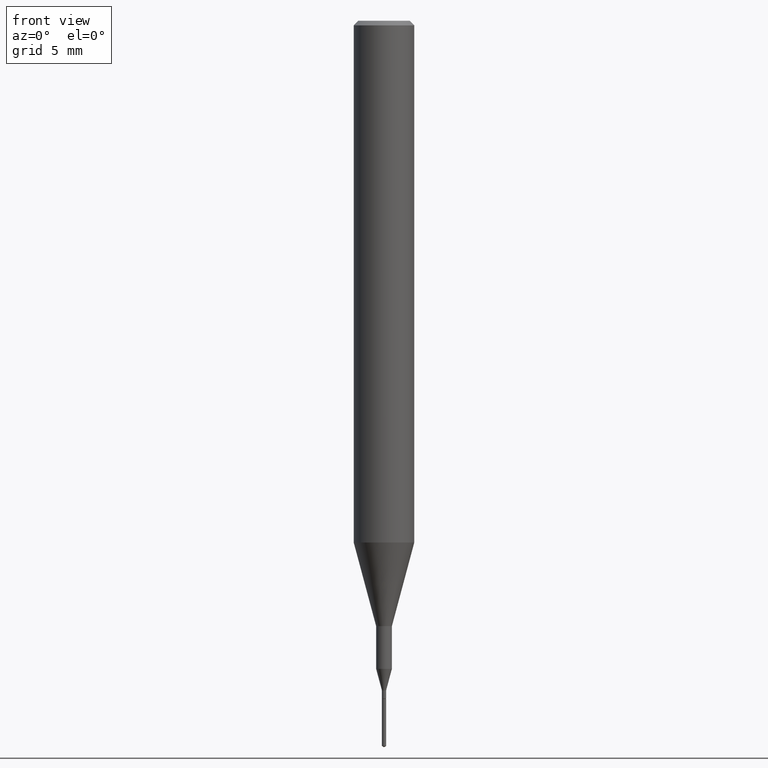
[diagram: clean part render]
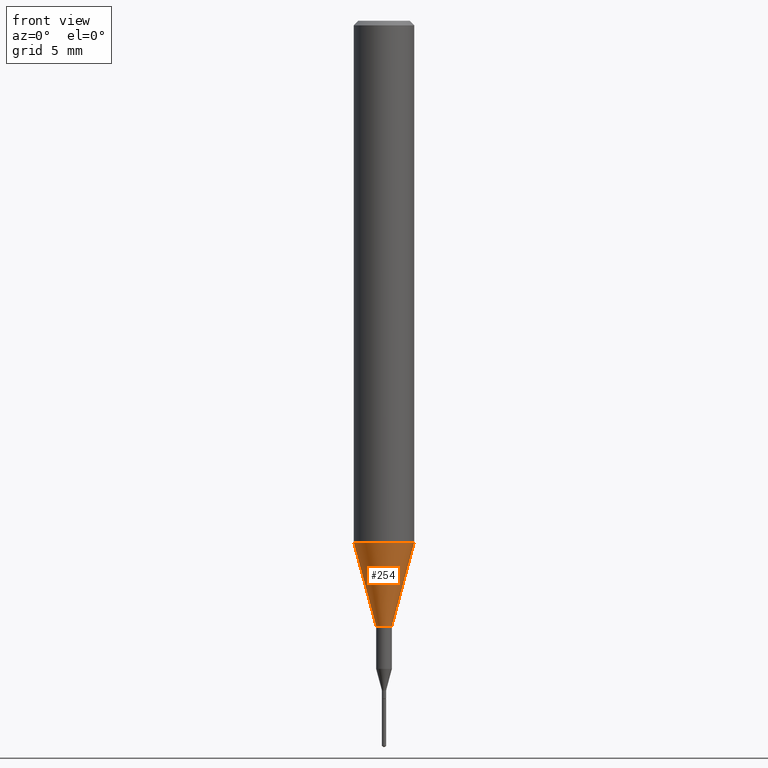
[diagram: same view with one face highlighted and labeled with its STEP entity id]
A machine part, front view. The second image highlights one B-rep face of the part: STEP entity #254.
In plain terms, the highlighted conical surface has half-angle 15 deg.
Its self-contained STEP definition (entity closure, byte-faithful):
#14 = VERTEX_POINT ( 'NONE', #343 ) ;
#21 = CIRCLE ( 'NONE', #82, 0.01624999999999999709 ) ;
#63 = AXIS2_PLACEMENT_3D ( 'NONE', #149, #416, #190 ) ;
#82 = AXIS2_PLACEMENT_3D ( 'NONE', #223, #372, #424 ) ;
#105 = VECTOR ( 'NONE', #351, 39.37007874015747433 ) ;
#107 = FACE_OUTER_BOUND ( 'NONE', #410, .T. ) ;
#137 = LINE ( 'NONE', #454, #222 ) ;
#142 = CIRCLE ( 'NONE', #525, 0.06250000000000012490 ) ;
#149 = CARTESIAN_POINT ( 'NONE',  ( 2.634730117954813298E-29, -3.761696332605275695E-15, -1.077392650149939346 ) ) ;
#155 = CARTESIAN_POINT ( 'NONE',  ( -0.06250000000000012490, -3.317607122755211895E-15, -1.077392650149939346 ) ) ;
#156 = ORIENTED_EDGE ( 'NONE', *, *, #370, .T. ) ;
#163 = VERTEX_POINT ( 'NONE', #385 ) ;
#190 = DIRECTION ( 'NONE',  ( 1.000000000000000000, -6.982962677686264344E-15, 0.000000000000000000 ) ) ;
#193 = CARTESIAN_POINT ( 'NONE',  ( 0.06250000000000012490, -4.198131499960668153E-15, -1.077392650149939346 ) ) ;
#197 = EDGE_CURVE ( 'NONE', #447, #163, #142, .T. ) ;
#222 = VECTOR ( 'NONE', #318, 39.37007874015747433 ) ;
#223 = CARTESIAN_POINT ( 'NONE',  ( 3.056836007731421306E-29, -4.364351673553932471E-15, -1.250000000000000000 ) ) ;
#254 = ADVANCED_FACE ( 'NONE', ( #107 ), #321, .T. ) ;
#275 = CARTESIAN_POINT ( 'NONE',  ( 2.634730117954813298E-29, -3.761696332605275695E-15, -1.077392650149939346 ) ) ;
#291 = VERTEX_POINT ( 'NONE', #511 ) ;
#315 = ORIENTED_EDGE ( 'NONE', *, *, #460, .T. ) ;
#318 = DIRECTION ( 'NONE',  ( -0.2588190451025214611, 5.211531920934551042E-15, 0.9659258262890682012 ) ) ;
#321 = CONICAL_SURFACE ( 'NONE', #63, 0.06250000000000012490, 0.2617993877991501295 ) ;
#326 = DIRECTION ( 'NONE',  ( 1.000000000000000000, -6.982962677686264344E-15, 0.000000000000000000 ) ) ;
#343 = CARTESIAN_POINT ( 'NONE',  ( -0.01624999999999999709, -4.402842896544281840E-15, -1.250000000000000000 ) ) ;
#351 = DIRECTION ( 'NONE',  ( 0.2588190451025214611, 1.565188264969621573E-15, 0.9659258262890682012 ) ) ;
#370 = EDGE_CURVE ( 'NONE', #14, #291, #21, .T. ) ;
#372 = DIRECTION ( 'NONE',  ( -2.445468806185136597E-29, 3.491481338843145583E-15, 1.000000000000000000 ) ) ;
#385 = CARTESIAN_POINT ( 'NONE',  ( 0.06250000000000012490, -4.198131499960668153E-15, -1.077392650149939346 ) ) ;
#410 = EDGE_LOOP ( 'NONE', ( #483, #156, #315, #567 ) ) ;
#411 = EDGE_CURVE ( 'NONE', #14, #447, #137, .T. ) ;
#416 = DIRECTION ( 'NONE',  ( -2.445468806185136597E-29, 3.491481338843145583E-15, 1.000000000000000000 ) ) ;
#424 = DIRECTION ( 'NONE',  ( 1.000000000000000000, -6.982962677686288799E-15, 0.000000000000000000 ) ) ;
#426 = LINE ( 'NONE', #193, #105 ) ;
#447 = VERTEX_POINT ( 'NONE', #155 ) ;
#454 = CARTESIAN_POINT ( 'NONE',  ( -0.06250000000000012490, -3.317607122755211895E-15, -1.077392650149939346 ) ) ;
#459 = DIRECTION ( 'NONE',  ( -2.445468806185136597E-29, 3.491481338843145583E-15, 1.000000000000000000 ) ) ;
#460 = EDGE_CURVE ( 'NONE', #291, #163, #426, .T. ) ;
#483 = ORIENTED_EDGE ( 'NONE', *, *, #411, .F. ) ;
#511 = CARTESIAN_POINT ( 'NONE',  ( 0.01624999999999999709, -4.477824817066334148E-15, -1.250000000000000000 ) ) ;
#525 = AXIS2_PLACEMENT_3D ( 'NONE', #275, #459, #326 ) ;
#567 = ORIENTED_EDGE ( 'NONE', *, *, #197, .F. ) ;